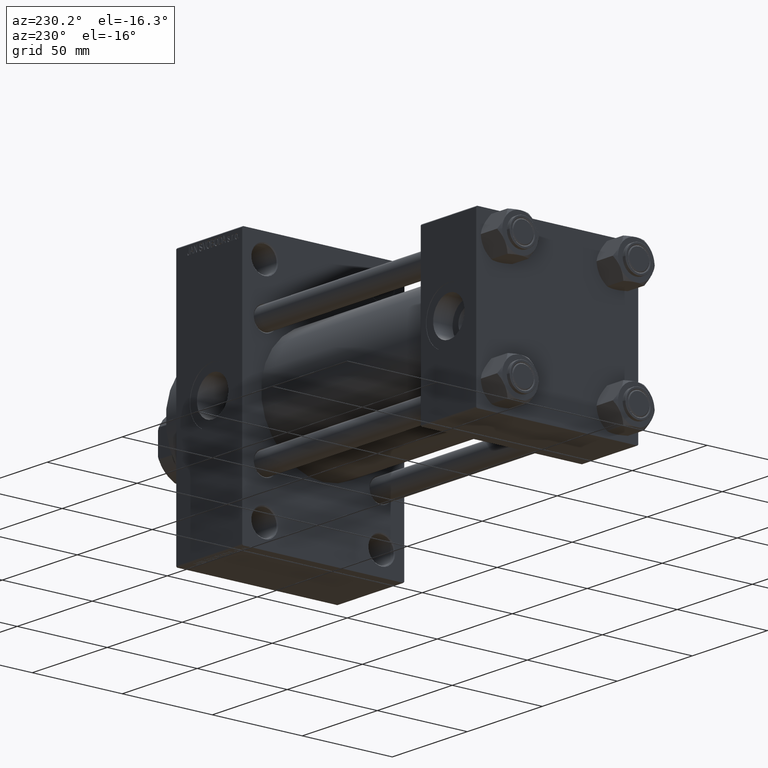
[diagram: clean part render]
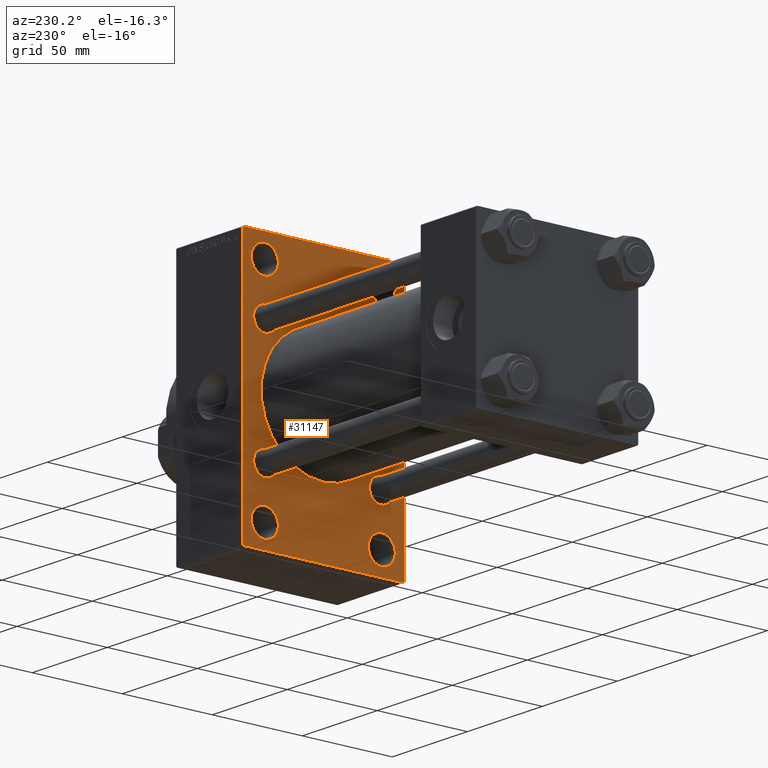
[diagram: same view with one face highlighted and labeled with its STEP entity id]
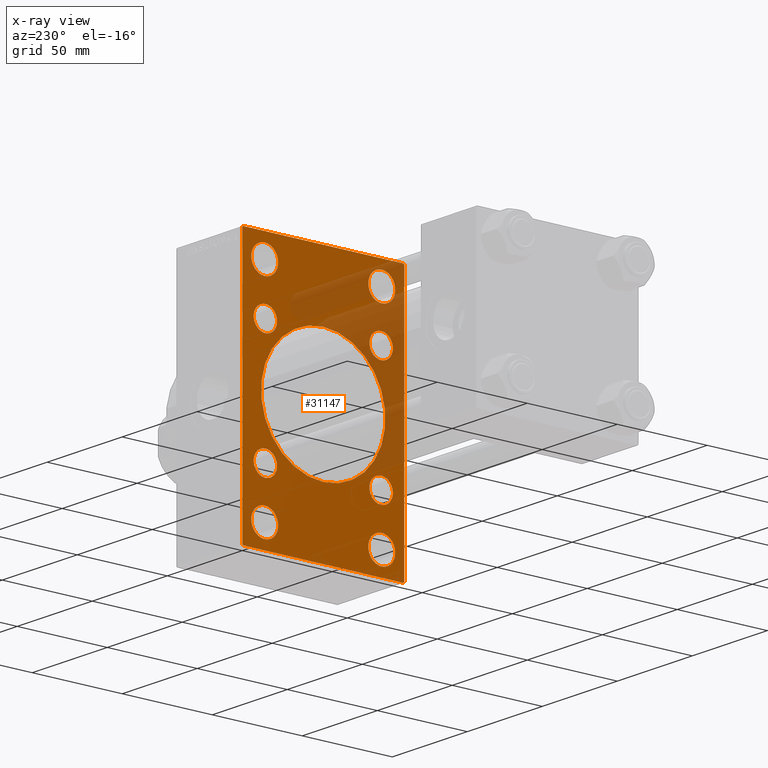
[diagram: x-ray of the same camera — body ghosted, the highlighted face saturated]
A machine part, auxiliary view. The second image highlights one B-rep face of the part: STEP entity #31147.
The next image is the same camera in x-ray: the body ghosted, the highlighted face saturated — about 26% of this face is hidden behind the body in this view.
In plain terms, the highlighted planar face has unit normal (-1, 0, 0).
Its self-contained STEP definition (entity closure, byte-faithful):
#143 = CARTESIAN_POINT ( 'NONE',  ( 156.0000000000000000, -2.602085213965210642E-15, 34.50000000000000000 ) ) ;
#503 = FACE_BOUND ( 'NONE', #35805, .T. ) ;
#533 = VERTEX_POINT ( 'NONE', #38714 ) ;
#575 = AXIS2_PLACEMENT_3D ( 'NONE', #43410, #7197, #3596 ) ;
#952 = FACE_BOUND ( 'NONE', #45892, .T. ) ;
#1314 = CARTESIAN_POINT ( 'NONE',  ( 156.0000000000000000, -32.50000000000000000, 58.50000000000000711 ) ) ;
#1490 = CARTESIAN_POINT ( 'NONE',  ( 156.0000000000000000, 45.00000000000001421, -70.50000000000001421 ) ) ;
#1533 = CIRCLE ( 'NONE', #15346, 6.500000000000005329 ) ;
#1823 = EDGE_CURVE ( 'NONE', #7276, #18358, #25458, .T. ) ;
#1859 = VERTEX_POINT ( 'NONE', #12843 ) ;
#1921 = CARTESIAN_POINT ( 'NONE',  ( 156.0000000000000000, 44.50000000000004263, -70.99999999999998579 ) ) ;
#1943 = EDGE_CURVE ( 'NONE', #2594, #12702, #22433, .T. ) ;
#2055 = CIRCLE ( 'NONE', #32684, 6.499999999999999112 ) ;
#2087 = DIRECTION ( 'NONE',  ( 0.000000000000000000, 0.000000000000000000, 1.000000000000000000 ) ) ;
#2107 = CIRCLE ( 'NONE', #575, 34.50000000000000000 ) ;
#2190 = EDGE_LOOP ( 'NONE', ( #33541, #9983 ) ) ;
#2594 = VERTEX_POINT ( 'NONE', #22044 ) ;
#3245 = DIRECTION ( 'NONE',  ( 1.000000000000000000, -0.000000000000000000, 0.000000000000000000 ) ) ;
#3327 = VERTEX_POINT ( 'NONE', #1921 ) ;
#3596 = DIRECTION ( 'NONE',  ( 0.000000000000000000, 0.000000000000000000, -1.000000000000000000 ) ) ;
#3630 = VERTEX_POINT ( 'NONE', #8817 ) ;
#3728 = AXIS2_PLACEMENT_3D ( 'NONE', #43794, #24609, #7111 ) ;
#4331 = EDGE_CURVE ( 'NONE', #40356, #17353, #22504, .T. ) ;
#4565 = PLANE ( 'NONE',  #8579 ) ;
#4721 = AXIS2_PLACEMENT_3D ( 'NONE', #25060, #3245, #39698 ) ;
#4801 = LINE ( 'NONE', #41495, #15716 ) ;
#4907 = LINE ( 'NONE', #33691, #24868 ) ;
#4987 = VERTEX_POINT ( 'NONE', #40156 ) ;
#5132 = EDGE_LOOP ( 'NONE', ( #23373, #29006 ) ) ;
#5396 = DIRECTION ( 'NONE',  ( 1.000000000000000000, 0.000000000000000000, 0.000000000000000000 ) ) ;
#5688 = EDGE_LOOP ( 'NONE', ( #41248, #33999 ) ) ;
#6175 = DIRECTION ( 'NONE',  ( 1.000000000000000000, -0.000000000000000000, 0.000000000000000000 ) ) ;
#6266 = LINE ( 'NONE', #47246, #8192 ) ;
#6275 = CARTESIAN_POINT ( 'NONE',  ( 156.0000000000000000, -32.50000000000000000, 58.50000000000000711 ) ) ;
#6366 = DIRECTION ( 'NONE',  ( 0.000000000000000000, 0.000000000000000000, 1.000000000000000000 ) ) ;
#6837 = LINE ( 'NONE', #21450, #37258 ) ;
#6986 = FACE_BOUND ( 'NONE', #5132, .T. ) ;
#7059 = CARTESIAN_POINT ( 'NONE',  ( 156.0000000000000000, -32.14999999999997726, 32.15000000000001279 ) ) ;
#7091 = ORIENTED_EDGE ( 'NONE', *, *, #11494, .T. ) ;
#7111 = DIRECTION ( 'NONE',  ( 0.000000000000000000, 0.000000000000000000, 1.000000000000000000 ) ) ;
#7197 = DIRECTION ( 'NONE',  ( 1.000000000000000000, 0.000000000000000000, 0.000000000000000000 ) ) ;
#7276 = VERTEX_POINT ( 'NONE', #143 ) ;
#7382 = EDGE_CURVE ( 'NONE', #33832, #1859, #42528, .T. ) ;
#7968 = EDGE_CURVE ( 'NONE', #8366, #15601, #21871, .T. ) ;
#8192 = VECTOR ( 'NONE', #21346, 1000.000000000000000 ) ;
#8366 = VERTEX_POINT ( 'NONE', #28946 ) ;
#8579 = AXIS2_PLACEMENT_3D ( 'NONE', #18959, #33109, #19182 ) ;
#8817 = CARTESIAN_POINT ( 'NONE',  ( 156.0000000000000000, -44.49999999999989342, 70.99999999999998579 ) ) ;
#8846 = CIRCLE ( 'NONE', #21095, 7.499999999999951150 ) ;
#9227 = CARTESIAN_POINT ( 'NONE',  ( 156.0000000000000000, 32.50000000000000711, -51.00000000000004263 ) ) ;
#9258 = CARTESIAN_POINT ( 'NONE',  ( 156.0000000000000000, 44.49999999999999289, 71.00000000000000000 ) ) ;
#9454 = ORIENTED_EDGE ( 'NONE', *, *, #19746, .T. ) ;
#9983 = ORIENTED_EDGE ( 'NONE', *, *, #20942, .T. ) ;
#10032 = VERTEX_POINT ( 'NONE', #22742 ) ;
#10242 = ORIENTED_EDGE ( 'NONE', *, *, #40101, .T. ) ;
#11494 = EDGE_CURVE ( 'NONE', #12702, #2594, #42523, .T. ) ;
#11750 = CARTESIAN_POINT ( 'NONE',  ( 156.0000000000000000, 32.50000000000000711, 65.99999999999995737 ) ) ;
#12004 = CIRCLE ( 'NONE', #24252, 6.499999999999999112 ) ;
#12554 = EDGE_CURVE ( 'NONE', #32797, #3327, #4801, .T. ) ;
#12702 = VERTEX_POINT ( 'NONE', #27572 ) ;
#12843 = CARTESIAN_POINT ( 'NONE',  ( 156.0000000000000000, -32.50000000000000000, 65.99999999999995737 ) ) ;
#13397 = AXIS2_PLACEMENT_3D ( 'NONE', #1314, #31292, #16194 ) ;
#13705 = FACE_BOUND ( 'NONE', #39799, .T. ) ;
#13764 = CIRCLE ( 'NONE', #15299, 7.499999999999958256 ) ;
#13838 = ORIENTED_EDGE ( 'NONE', *, *, #4331, .T. ) ;
#14067 = DIRECTION ( 'NONE',  ( 0.000000000000000000, 0.000000000000000000, 1.000000000000000000 ) ) ;
#14263 = VERTEX_POINT ( 'NONE', #40706 ) ;
#14447 = EDGE_CURVE ( 'NONE', #30138, #533, #6837, .T. ) ;
#14965 = CARTESIAN_POINT ( 'NONE',  ( 156.0000000000000000, 32.14999999999999147, 38.65000000000001279 ) ) ;
#15299 = AXIS2_PLACEMENT_3D ( 'NONE', #46919, #43804, #14067 ) ;
#15346 = AXIS2_PLACEMENT_3D ( 'NONE', #28216, #6175, #2087 ) ;
#15518 = ORIENTED_EDGE ( 'NONE', *, *, #36018, .T. ) ;
#15584 = EDGE_CURVE ( 'NONE', #45815, #15906, #2055, .T. ) ;
#15600 = EDGE_CURVE ( 'NONE', #28847, #32797, #6266, .T. ) ;
#15601 = VERTEX_POINT ( 'NONE', #25170 ) ;
#15637 = CARTESIAN_POINT ( 'NONE',  ( 156.0000000000000000, -44.99999999999997158, 70.49999999999990052 ) ) ;
#15716 = VECTOR ( 'NONE', #42208, 999.9999999999998863 ) ;
#15757 = AXIS2_PLACEMENT_3D ( 'NONE', #33363, #44627, #26154 ) ;
#15906 = VERTEX_POINT ( 'NONE', #28026 ) ;
#16154 = CIRCLE ( 'NONE', #23815, 6.500000000000005329 ) ;
#16194 = DIRECTION ( 'NONE',  ( 0.000000000000000000, 0.000000000000000000, 1.000000000000000000 ) ) ;
#16423 = ORIENTED_EDGE ( 'NONE', *, *, #21916, .T. ) ;
#16589 = DIRECTION ( 'NONE',  ( 0.000000000000000000, 0.000000000000000000, 1.000000000000000000 ) ) ;
#17054 = AXIS2_PLACEMENT_3D ( 'NONE', #39433, #18318, #47099 ) ;
#17126 = AXIS2_PLACEMENT_3D ( 'NONE', #24045, #26688, #34830 ) ;
#17168 = ORIENTED_EDGE ( 'NONE', *, *, #42781, .T. ) ;
#17353 = VERTEX_POINT ( 'NONE', #9227 ) ;
#17454 = VECTOR ( 'NONE', #19437, 1000.000000000000000 ) ;
#17807 = EDGE_CURVE ( 'NONE', #42893, #20644, #19738, .T. ) ;
#18064 = CIRCLE ( 'NONE', #40290, 7.499999999999958256 ) ;
#18316 = DIRECTION ( 'NONE',  ( 1.000000000000000000, -0.000000000000000000, 0.000000000000000000 ) ) ;
#18318 = DIRECTION ( 'NONE',  ( 1.000000000000000000, -0.000000000000000000, 0.000000000000000000 ) ) ;
#18358 = VERTEX_POINT ( 'NONE', #25171 ) ;
#18591 = ORIENTED_EDGE ( 'NONE', *, *, #47039, .T. ) ;
#18725 = EDGE_LOOP ( 'NONE', ( #16423, #10242 ) ) ;
#18959 = CARTESIAN_POINT ( 'NONE',  ( 156.0000000000000000, 0.000000000000000000, 0.000000000000000000 ) ) ;
#19085 = DIRECTION ( 'NONE',  ( 0.000000000000000000, 0.000000000000000000, 1.000000000000000000 ) ) ;
#19182 = DIRECTION ( 'NONE',  ( -0.000000000000000000, 0.000000000000000000, 1.000000000000000000 ) ) ;
#19437 = DIRECTION ( 'NONE',  ( -0.000000000000000000, 0.7071067811865230368, 0.7071067811865721087 ) ) ;
#19738 = CIRCLE ( 'NONE', #25868, 7.499999999999951150 ) ;
#19746 = EDGE_CURVE ( 'NONE', #15601, #8366, #39703, .T. ) ;
#19925 = CARTESIAN_POINT ( 'NONE',  ( 156.0000000000000000, 32.14999999999999147, 32.15000000000000568 ) ) ;
#20338 = AXIS2_PLACEMENT_3D ( 'NONE', #7059, #18316, #32939 ) ;
#20429 = EDGE_LOOP ( 'NONE', ( #17168, #15518, #26725, #18591, #25462, #30834, #39896, #23215 ) ) ;
#20644 = VERTEX_POINT ( 'NONE', #35241 ) ;
#20937 = DIRECTION ( 'NONE',  ( 0.000000000000000000, -1.000000000000000000, -1.541976423090495633E-16 ) ) ;
#20942 = EDGE_CURVE ( 'NONE', #10032, #26707, #1533, .T. ) ;
#21095 = AXIS2_PLACEMENT_3D ( 'NONE', #34522, #30921, #34289 ) ;
#21339 = EDGE_CURVE ( 'NONE', #17353, #40356, #8846, .T. ) ;
#21346 = DIRECTION ( 'NONE',  ( 0.000000000000000000, -4.886545002751570165E-17, -1.000000000000000000 ) ) ;
#21450 = CARTESIAN_POINT ( 'NONE',  ( 156.0000000000000000, -44.99999999999997158, 70.99999999999998579 ) ) ;
#21779 = CARTESIAN_POINT ( 'NONE',  ( 156.0000000000000000, 32.14999999999999147, -25.64999999999999858 ) ) ;
#21871 = CIRCLE ( 'NONE', #15757, 6.500000000000005329 ) ;
#21916 = EDGE_CURVE ( 'NONE', #4987, #14263, #13764, .T. ) ;
#22044 = CARTESIAN_POINT ( 'NONE',  ( 156.0000000000000000, -32.14999999999997726, 38.65000000000002700 ) ) ;
#22248 = DIRECTION ( 'NONE',  ( 1.000000000000000000, -0.000000000000000000, 0.000000000000000000 ) ) ;
#22324 = FACE_OUTER_BOUND ( 'NONE', #20429, .T. ) ;
#22433 = CIRCLE ( 'NONE', #17054, 6.500000000000005329 ) ;
#22504 = CIRCLE ( 'NONE', #17126, 7.499999999999951150 ) ;
#22742 = CARTESIAN_POINT ( 'NONE',  ( 156.0000000000000000, 32.14999999999999147, -38.65000000000001279 ) ) ;
#22905 = DIRECTION ( 'NONE',  ( 0.000000000000000000, 0.7071067811865672237, -0.7071067811865279218 ) ) ;
#23215 = ORIENTED_EDGE ( 'NONE', *, *, #12554, .T. ) ;
#23288 = VECTOR ( 'NONE', #25215, 1000.000000000000000 ) ;
#23373 = ORIENTED_EDGE ( 'NONE', *, *, #15584, .T. ) ;
#23815 = AXIS2_PLACEMENT_3D ( 'NONE', #27699, #28182, #6366 ) ;
#23939 = AXIS2_PLACEMENT_3D ( 'NONE', #35129, #5396, #24561 ) ;
#24045 = CARTESIAN_POINT ( 'NONE',  ( 156.0000000000000000, 32.50000000000000711, -58.50000000000000000 ) ) ;
#24252 = AXIS2_PLACEMENT_3D ( 'NONE', #26517, #29877, #19085 ) ;
#24561 = DIRECTION ( 'NONE',  ( 0.000000000000000000, 0.000000000000000000, -1.000000000000000000 ) ) ;
#24609 = DIRECTION ( 'NONE',  ( 1.000000000000000000, -0.000000000000000000, 0.000000000000000000 ) ) ;
#24868 = VECTOR ( 'NONE', #22905, 1000.000000000000000 ) ;
#25060 = CARTESIAN_POINT ( 'NONE',  ( 156.0000000000000000, 32.50000000000000711, 58.50000000000000711 ) ) ;
#25170 = CARTESIAN_POINT ( 'NONE',  ( 156.0000000000000000, -32.14999999999997726, -25.65000000000000568 ) ) ;
#25171 = CARTESIAN_POINT ( 'NONE',  ( 156.0000000000000000, 1.622946243093158675E-15, -34.50000000000000000 ) ) ;
#25186 = FACE_BOUND ( 'NONE', #30793, .T. ) ;
#25215 = DIRECTION ( 'NONE',  ( 0.000000000000000000, -1.000000000000000000, -1.541976423090495387E-16 ) ) ;
#25458 = CIRCLE ( 'NONE', #23939, 34.50000000000000000 ) ;
#25462 = ORIENTED_EDGE ( 'NONE', *, *, #36212, .F. ) ;
#25771 = EDGE_CURVE ( 'NONE', #20644, #42893, #42235, .T. ) ;
#25868 = AXIS2_PLACEMENT_3D ( 'NONE', #35704, #39772, #40009 ) ;
#26154 = DIRECTION ( 'NONE',  ( 0.000000000000000000, 0.000000000000000000, 1.000000000000000000 ) ) ;
#26517 = CARTESIAN_POINT ( 'NONE',  ( 156.0000000000000000, 32.14999999999999147, 32.15000000000000568 ) ) ;
#26688 = DIRECTION ( 'NONE',  ( 1.000000000000000000, -0.000000000000000000, 0.000000000000000000 ) ) ;
#26707 = VERTEX_POINT ( 'NONE', #21779 ) ;
#26725 = ORIENTED_EDGE ( 'NONE', *, *, #14447, .F. ) ;
#27572 = CARTESIAN_POINT ( 'NONE',  ( 156.0000000000000000, -32.14999999999997726, 25.65000000000000213 ) ) ;
#27699 = CARTESIAN_POINT ( 'NONE',  ( 156.0000000000000000, 32.14999999999999147, -32.15000000000000568 ) ) ;
#28026 = CARTESIAN_POINT ( 'NONE',  ( 156.0000000000000000, 32.14999999999999147, 25.65000000000000213 ) ) ;
#28063 = EDGE_CURVE ( 'NONE', #26707, #10032, #16154, .T. ) ;
#28182 = DIRECTION ( 'NONE',  ( 1.000000000000000000, -0.000000000000000000, 0.000000000000000000 ) ) ;
#28216 = CARTESIAN_POINT ( 'NONE',  ( 156.0000000000000000, 32.14999999999999147, -32.15000000000000568 ) ) ;
#28386 = ORIENTED_EDGE ( 'NONE', *, *, #1823, .T. ) ;
#28792 = DIRECTION ( 'NONE',  ( 1.000000000000000000, -0.000000000000000000, 0.000000000000000000 ) ) ;
#28800 = FACE_BOUND ( 'NONE', #5688, .T. ) ;
#28847 = VERTEX_POINT ( 'NONE', #37393 ) ;
#28894 = DIRECTION ( 'NONE',  ( 0.000000000000000000, 0.000000000000000000, -1.000000000000000000 ) ) ;
#28946 = CARTESIAN_POINT ( 'NONE',  ( 156.0000000000000000, -32.14999999999997726, -38.65000000000001990 ) ) ;
#29006 = ORIENTED_EDGE ( 'NONE', *, *, #45576, .T. ) ;
#29061 = LINE ( 'NONE', #43696, #23288 ) ;
#29426 = VECTOR ( 'NONE', #41334, 1000.000000000000000 ) ;
#29556 = CIRCLE ( 'NONE', #35688, 7.499999999999951150 ) ;
#29877 = DIRECTION ( 'NONE',  ( 1.000000000000000000, -0.000000000000000000, 0.000000000000000000 ) ) ;
#29892 = VERTEX_POINT ( 'NONE', #37532 ) ;
#30138 = VERTEX_POINT ( 'NONE', #15637 ) ;
#30538 = CARTESIAN_POINT ( 'NONE',  ( 156.0000000000000000, -57.74999999999809575, -57.75000000000289901 ) ) ;
#30793 = EDGE_LOOP ( 'NONE', ( #40032, #13838 ) ) ;
#30834 = ORIENTED_EDGE ( 'NONE', *, *, #41247, .T. ) ;
#30921 = DIRECTION ( 'NONE',  ( 1.000000000000000000, -0.000000000000000000, 0.000000000000000000 ) ) ;
#31000 = CARTESIAN_POINT ( 'NONE',  ( 156.0000000000000000, -32.50000000000000000, 51.00000000000005684 ) ) ;
#31147 = ADVANCED_FACE ( 'NONE', ( #28800, #46566, #25186, #13705, #39827, #6986, #37430, #503, #952, #22324 ), #4565, .T. ) ;
#31292 = DIRECTION ( 'NONE',  ( 1.000000000000000000, -0.000000000000000000, 0.000000000000000000 ) ) ;
#31594 = ORIENTED_EDGE ( 'NONE', *, *, #47390, .T. ) ;
#32198 = LINE ( 'NONE', #42775, #37910 ) ;
#32684 = AXIS2_PLACEMENT_3D ( 'NONE', #19925, #42476, #16589 ) ;
#32797 = VERTEX_POINT ( 'NONE', #1490 ) ;
#32939 = DIRECTION ( 'NONE',  ( 0.000000000000000000, 0.000000000000000000, 1.000000000000000000 ) ) ;
#33109 = DIRECTION ( 'NONE',  ( -1.000000000000000000, 0.000000000000000000, -0.000000000000000000 ) ) ;
#33363 = CARTESIAN_POINT ( 'NONE',  ( 156.0000000000000000, -32.14999999999997726, -32.15000000000001279 ) ) ;
#33541 = ORIENTED_EDGE ( 'NONE', *, *, #28063, .T. ) ;
#33691 = CARTESIAN_POINT ( 'NONE',  ( 156.0000000000000000, 57.74999999999875655, 57.75000000000196820 ) ) ;
#33832 = VERTEX_POINT ( 'NONE', #31000 ) ;
#33999 = ORIENTED_EDGE ( 'NONE', *, *, #7382, .T. ) ;
#34289 = DIRECTION ( 'NONE',  ( 0.000000000000000000, 0.000000000000000000, 1.000000000000000000 ) ) ;
#34433 = ORIENTED_EDGE ( 'NONE', *, *, #1943, .T. ) ;
#34522 = CARTESIAN_POINT ( 'NONE',  ( 156.0000000000000000, 32.50000000000000711, -58.50000000000000000 ) ) ;
#34775 = ORIENTED_EDGE ( 'NONE', *, *, #7968, .T. ) ;
#34830 = DIRECTION ( 'NONE',  ( 0.000000000000000000, 0.000000000000000000, 1.000000000000000000 ) ) ;
#34983 = EDGE_LOOP ( 'NONE', ( #34433, #7091 ) ) ;
#35129 = CARTESIAN_POINT ( 'NONE',  ( 156.0000000000000000, -2.602085213965210642E-15, 0.000000000000000000 ) ) ;
#35241 = CARTESIAN_POINT ( 'NONE',  ( 156.0000000000000000, 32.50000000000000711, 51.00000000000005684 ) ) ;
#35688 = AXIS2_PLACEMENT_3D ( 'NONE', #6275, #28792, #43185 ) ;
#35704 = CARTESIAN_POINT ( 'NONE',  ( 156.0000000000000000, 32.50000000000000711, 58.50000000000000711 ) ) ;
#35765 = VERTEX_POINT ( 'NONE', #9258 ) ;
#35805 = EDGE_LOOP ( 'NONE', ( #9454, #34775 ) ) ;
#36018 = EDGE_CURVE ( 'NONE', #29892, #533, #38207, .T. ) ;
#36212 = EDGE_CURVE ( 'NONE', #35765, #3630, #29061, .T. ) ;
#36887 = DIRECTION ( 'NONE',  ( 0.000000000000000000, 0.000000000000000000, 1.000000000000000000 ) ) ;
#37258 = VECTOR ( 'NONE', #28894, 1000.000000000000000 ) ;
#37393 = CARTESIAN_POINT ( 'NONE',  ( 156.0000000000000000, 45.00000000000002132, 70.50000000000000000 ) ) ;
#37430 = FACE_BOUND ( 'NONE', #2190, .T. ) ;
#37532 = CARTESIAN_POINT ( 'NONE',  ( 156.0000000000000000, -44.49999999999985789, -71.00000000000000000 ) ) ;
#37910 = VECTOR ( 'NONE', #20937, 1000.000000000000000 ) ;
#38207 = LINE ( 'NONE', #30538, #29426 ) ;
#38714 = CARTESIAN_POINT ( 'NONE',  ( 156.0000000000000000, -44.99999999999997158, -70.49999999999995737 ) ) ;
#39433 = CARTESIAN_POINT ( 'NONE',  ( 156.0000000000000000, -32.14999999999997726, 32.15000000000001279 ) ) ;
#39698 = DIRECTION ( 'NONE',  ( 0.000000000000000000, 0.000000000000000000, 1.000000000000000000 ) ) ;
#39703 = CIRCLE ( 'NONE', #3728, 6.500000000000005329 ) ;
#39772 = DIRECTION ( 'NONE',  ( 1.000000000000000000, -0.000000000000000000, 0.000000000000000000 ) ) ;
#39799 = EDGE_LOOP ( 'NONE', ( #41289, #40460 ) ) ;
#39827 = FACE_BOUND ( 'NONE', #34983, .T. ) ;
#39896 = ORIENTED_EDGE ( 'NONE', *, *, #15600, .T. ) ;
#40009 = DIRECTION ( 'NONE',  ( 0.000000000000000000, 0.000000000000000000, 1.000000000000000000 ) ) ;
#40032 = ORIENTED_EDGE ( 'NONE', *, *, #21339, .T. ) ;
#40101 = EDGE_CURVE ( 'NONE', #14263, #4987, #18064, .T. ) ;
#40156 = CARTESIAN_POINT ( 'NONE',  ( 156.0000000000000000, -32.50000000000000000, -51.00000000000002842 ) ) ;
#40290 = AXIS2_PLACEMENT_3D ( 'NONE', #40487, #22248, #36887 ) ;
#40356 = VERTEX_POINT ( 'NONE', #40661 ) ;
#40460 = ORIENTED_EDGE ( 'NONE', *, *, #25771, .T. ) ;
#40487 = CARTESIAN_POINT ( 'NONE',  ( 156.0000000000000000, -32.50000000000000000, -58.49999999999999289 ) ) ;
#40661 = CARTESIAN_POINT ( 'NONE',  ( 156.0000000000000000, 32.50000000000000711, -65.99999999999994316 ) ) ;
#40706 = CARTESIAN_POINT ( 'NONE',  ( 156.0000000000000000, -32.50000000000000000, -65.99999999999994316 ) ) ;
#41247 = EDGE_CURVE ( 'NONE', #35765, #28847, #4907, .T. ) ;
#41248 = ORIENTED_EDGE ( 'NONE', *, *, #44349, .T. ) ;
#41289 = ORIENTED_EDGE ( 'NONE', *, *, #17807, .T. ) ;
#41334 = DIRECTION ( 'NONE',  ( 0.000000000000000000, -0.7071067811865769936, 0.7071067811865181518 ) ) ;
#41495 = CARTESIAN_POINT ( 'NONE',  ( 156.0000000000000000, 57.74999999999938893, -57.75000000000100187 ) ) ;
#41511 = LINE ( 'NONE', #45352, #17454 ) ;
#42208 = DIRECTION ( 'NONE',  ( -0.000000000000000000, -0.7071067811865574537, -0.7071067811865376918 ) ) ;
#42235 = CIRCLE ( 'NONE', #4721, 7.499999999999951150 ) ;
#42476 = DIRECTION ( 'NONE',  ( 1.000000000000000000, -0.000000000000000000, 0.000000000000000000 ) ) ;
#42523 = CIRCLE ( 'NONE', #20338, 6.500000000000005329 ) ;
#42528 = CIRCLE ( 'NONE', #13397, 7.499999999999951150 ) ;
#42775 = CARTESIAN_POINT ( 'NONE',  ( 156.0000000000000000, 45.00000000000001421, -70.99999999999998579 ) ) ;
#42781 = EDGE_CURVE ( 'NONE', #3327, #29892, #32198, .T. ) ;
#42893 = VERTEX_POINT ( 'NONE', #11750 ) ;
#43185 = DIRECTION ( 'NONE',  ( 0.000000000000000000, 0.000000000000000000, 1.000000000000000000 ) ) ;
#43410 = CARTESIAN_POINT ( 'NONE',  ( 156.0000000000000000, -2.602085213965210642E-15, 0.000000000000000000 ) ) ;
#43696 = CARTESIAN_POINT ( 'NONE',  ( 156.0000000000000000, 45.00000000000002132, 71.00000000000000000 ) ) ;
#43794 = CARTESIAN_POINT ( 'NONE',  ( 156.0000000000000000, -32.14999999999997726, -32.15000000000001279 ) ) ;
#43804 = DIRECTION ( 'NONE',  ( 1.000000000000000000, -0.000000000000000000, 0.000000000000000000 ) ) ;
#44349 = EDGE_CURVE ( 'NONE', #1859, #33832, #29556, .T. ) ;
#44627 = DIRECTION ( 'NONE',  ( 1.000000000000000000, -0.000000000000000000, 0.000000000000000000 ) ) ;
#45352 = CARTESIAN_POINT ( 'NONE',  ( 156.0000000000000000, -57.75000000000149925, 57.74999999999749178 ) ) ;
#45576 = EDGE_CURVE ( 'NONE', #15906, #45815, #12004, .T. ) ;
#45815 = VERTEX_POINT ( 'NONE', #14965 ) ;
#45892 = EDGE_LOOP ( 'NONE', ( #28386, #31594 ) ) ;
#46566 = FACE_BOUND ( 'NONE', #18725, .T. ) ;
#46919 = CARTESIAN_POINT ( 'NONE',  ( 156.0000000000000000, -32.50000000000000000, -58.49999999999999289 ) ) ;
#47039 = EDGE_CURVE ( 'NONE', #30138, #3630, #41511, .T. ) ;
#47099 = DIRECTION ( 'NONE',  ( 0.000000000000000000, 0.000000000000000000, 1.000000000000000000 ) ) ;
#47246 = CARTESIAN_POINT ( 'NONE',  ( 156.0000000000000000, 45.00000000000002132, 71.00000000000000000 ) ) ;
#47390 = EDGE_CURVE ( 'NONE', #18358, #7276, #2107, .T. ) ;